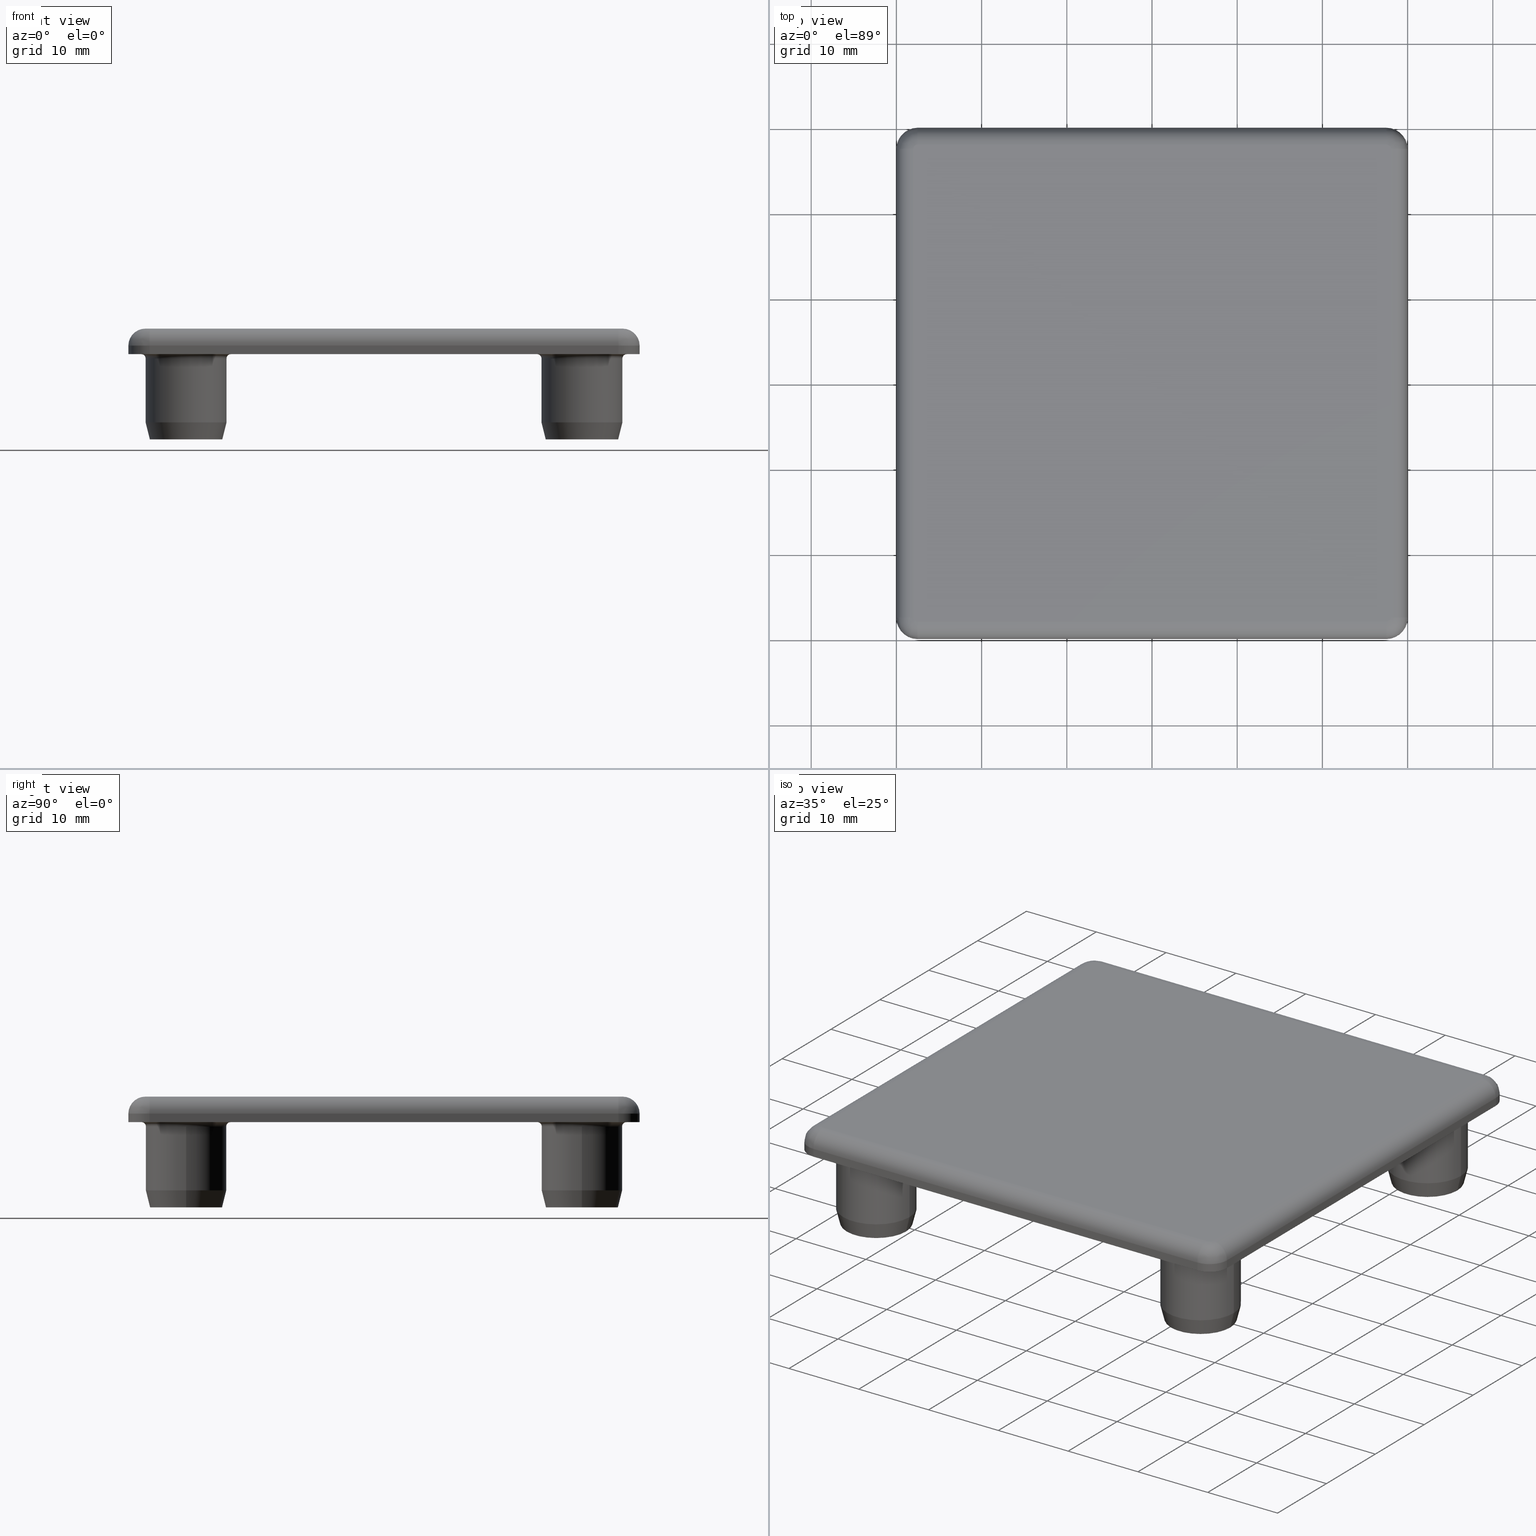
[diagram: canonical four-view strip — front | top / right | iso, engineering-drawing reading convention]
A machine part, canonical four-view strip (front | top / right | iso — engineering-drawing reading convention). The complete STEP part file that produces these views, byte-faithful:
ISO-10303-21;
HEADER;
/* Generated by software containing ST-Developer
 * from STEP Tools, Inc. (www.steptools.com) 
 */

FILE_DESCRIPTION(
/* description */ ('TAPPO 60X60 NERO PER STRUTTURALE'),
/* implementation_level */ '2;1');

FILE_NAME(
/* name */ 
'Q:\\Catalogo\\2_Accessori Dierre\\Per Download Web e catalogo cartace
o\\CATALOGO TAPPI DI CHIUSURA\\PAGINA 89\\DTPTR0000067.stp',
/* time_stamp */ '2018-11-08T10:35:47+01:00',
/* author */ ('fzagni'),
/* organization */ (''),
/* preprocessor_version */ 'ST-DEVELOPER v16.1',
/* originating_system */ 'Autodesk Inventor 2016',
/* authorisation */ '');

FILE_SCHEMA (('AUTOMOTIVE_DESIGN { 1 0 10303 214 3 1 1 }'));
ENDSEC;

DATA;
#10=MECHANICAL_DESIGN_GEOMETRIC_PRESENTATION_REPRESENTATION('',(#13),#1263);
#11=SHAPE_REPRESENTATION_RELATIONSHIP('SRR','None',#1272,#12);
#12=ADVANCED_BREP_SHAPE_REPRESENTATION('',(#14),#1262);
#13=STYLED_ITEM('',(#1281),#14);
#14=MANIFOLD_SOLID_BREP('Importato1',#679);
#15=(
BOUNDED_SURFACE()
B_SPLINE_SURFACE(2,2,((#1199,#1200,#1201),(#1202,#1203,#1204),(#1205,#1206,
#1207)),.UNSPECIFIED.,.F.,.F.,.F.)
B_SPLINE_SURFACE_WITH_KNOTS((3,3),(3,3),(-1.57079632679489,2.95433129681904E-14),
(-1.5707963267949,1.55431223447541E-15),.UNSPECIFIED.)
GEOMETRIC_REPRESENTATION_ITEM()
RATIONAL_B_SPLINE_SURFACE(((1.,0.707106781186547,1.),(0.707106781186535,
0.499999999999991,0.707106781186535),(1.,0.707106781186547,1.)))
REPRESENTATION_ITEM('')
SURFACE()
);
#16=(
BOUNDED_SURFACE()
B_SPLINE_SURFACE(2,2,((#1209,#1210,#1211),(#1212,#1213,#1214),(#1215,#1216,
#1217)),.UNSPECIFIED.,.F.,.F.,.F.)
B_SPLINE_SURFACE_WITH_KNOTS((3,3),(3,3),(-1.57079632679491,1.15225276094208E-14),
(-3.14159265358979,-1.57079632679483),.UNSPECIFIED.)
GEOMETRIC_REPRESENTATION_ITEM()
RATIONAL_B_SPLINE_SURFACE(((1.,0.707106781186522,1.),(0.707106781186542,
0.499999999999979,0.707106781186542),(1.,0.707106781186522,1.)))
REPRESENTATION_ITEM('')
SURFACE()
);
#17=(
BOUNDED_SURFACE()
B_SPLINE_SURFACE(2,2,((#1223,#1224,#1225),(#1226,#1227,#1228),(#1229,#1230,
#1231)),.UNSPECIFIED.,.F.,.F.,.F.)
B_SPLINE_SURFACE_WITH_KNOTS((3,3),(3,3),(-1.57079632679491,-7.98477870953328E-15),
(-2.75496933148325E-14,1.57079632679497),.UNSPECIFIED.)
GEOMETRIC_REPRESENTATION_ITEM()
RATIONAL_B_SPLINE_SURFACE(((1.,0.707106781186512,1.),(0.707106781186545,
0.499999999999973,0.707106781186545),(1.,0.707106781186512,1.)))
REPRESENTATION_ITEM('')
SURFACE()
);
#18=(
BOUNDED_SURFACE()
B_SPLINE_SURFACE(2,2,((#1233,#1234,#1235),(#1236,#1237,#1238),(#1239,#1240,
#1241)),.UNSPECIFIED.,.F.,.F.,.F.)
B_SPLINE_SURFACE_WITH_KNOTS((3,3),(3,3),(-1.5707963267949,3.42207922625081E-14),
(1.5707963267949,3.1415926535898),.UNSPECIFIED.)
GEOMETRIC_REPRESENTATION_ITEM()
RATIONAL_B_SPLINE_SURFACE(((1.,0.707106781186547,1.),(0.707106781186534,
0.49999999999999,0.707106781186534),(1.,0.707106781186547,1.)))
REPRESENTATION_ITEM('')
SURFACE()
);
#19=LINE('',#1135,#39);
#20=LINE('',#1139,#40);
#21=LINE('',#1143,#41);
#22=LINE('',#1146,#42);
#23=LINE('',#1149,#43);
#24=LINE('',#1152,#44);
#25=LINE('',#1155,#45);
#26=LINE('',#1156,#46);
#27=LINE('',#1160,#47);
#28=LINE('',#1163,#48);
#29=LINE('',#1164,#49);
#30=LINE('',#1168,#50);
#31=LINE('',#1171,#51);
#32=LINE('',#1172,#52);
#33=LINE('',#1176,#53);
#34=LINE('',#1178,#54);
#35=LINE('',#1184,#55);
#36=LINE('',#1188,#56);
#37=LINE('',#1192,#57);
#38=LINE('',#1195,#58);
#39=VECTOR('',#917,55.);
#40=VECTOR('',#920,55.);
#41=VECTOR('',#923,55.);
#42=VECTOR('',#926,55.);
#43=VECTOR('',#929,1.);
#44=VECTOR('',#932,1.);
#45=VECTOR('',#935,55.);
#46=VECTOR('',#936,1.);
#47=VECTOR('',#941,1.);
#48=VECTOR('',#944,55.);
#49=VECTOR('',#945,1.);
#50=VECTOR('',#950,1.);
#51=VECTOR('',#953,55.);
#52=VECTOR('',#954,1.);
#53=VECTOR('',#959,1.);
#54=VECTOR('',#962,55.);
#55=VECTOR('',#967,55.);
#56=VECTOR('',#970,55.);
#57=VECTOR('',#973,55.);
#58=VECTOR('',#976,55.);
#59=PLANE('',#741);
#60=PLANE('',#748);
#61=PLANE('',#751);
#62=PLANE('',#754);
#63=PLANE('',#757);
#64=PLANE('',#758);
#65=PLANE('',#775);
#66=PLANE('',#776);
#67=PLANE('',#777);
#68=PLANE('',#779);
#69=PLANE('',#783);
#70=PLANE('',#784);
#71=PLANE('',#785);
#72=PLANE('',#787);
#73=CYLINDRICAL_SURFACE('',#703,3.75);
#74=CYLINDRICAL_SURFACE('',#706,3.75);
#75=CYLINDRICAL_SURFACE('',#709,4.75);
#76=CYLINDRICAL_SURFACE('',#710,4.75);
#77=CYLINDRICAL_SURFACE('',#727,3.75);
#78=CYLINDRICAL_SURFACE('',#730,3.75);
#79=CYLINDRICAL_SURFACE('',#739,4.75);
#80=CYLINDRICAL_SURFACE('',#740,4.75);
#81=CYLINDRICAL_SURFACE('',#746,2.5);
#82=CYLINDRICAL_SURFACE('',#749,2.5);
#83=CYLINDRICAL_SURFACE('',#752,2.5);
#84=CYLINDRICAL_SURFACE('',#755,2.5);
#85=CYLINDRICAL_SURFACE('',#763,2.);
#86=CYLINDRICAL_SURFACE('',#768,2.);
#87=CYLINDRICAL_SURFACE('',#770,2.);
#88=CYLINDRICAL_SURFACE('',#774,2.);
#89=TOROIDAL_SURFACE('',#687,5.25,0.500000000000006);
#90=TOROIDAL_SURFACE('',#690,3.2499999672725,0.500000001549869);
#91=TOROIDAL_SURFACE('',#695,3.24999996727248,0.500000001549877);
#92=TOROIDAL_SURFACE('',#700,5.25000000000001,0.500000000000002);
#93=TOROIDAL_SURFACE('',#711,5.25,0.500000000000002);
#94=TOROIDAL_SURFACE('',#714,3.24999996727249,0.500000001549881);
#95=TOROIDAL_SURFACE('',#719,3.2499999672725,0.50000000154987);
#96=TOROIDAL_SURFACE('',#724,5.25,0.499999999999999);
#97=TOROIDAL_SURFACE('',#781,3.24999996727251,0.500000001549878);
#98=TOROIDAL_SURFACE('',#782,3.24999996727249,0.500000001549871);
#99=TOROIDAL_SURFACE('',#789,3.2499999672725,0.500000001549867);
#100=TOROIDAL_SURFACE('',#790,3.24999996727251,0.50000000154988);
#101=FACE_BOUND('',#176,.T.);
#102=FACE_BOUND('',#178,.T.);
#103=FACE_BOUND('',#180,.T.);
#104=FACE_BOUND('',#184,.T.);
#105=FACE_BOUND('',#186,.T.);
#106=FACE_BOUND('',#188,.T.);
#107=FACE_BOUND('',#190,.T.);
#108=FACE_BOUND('',#192,.T.);
#109=FACE_BOUND('',#194,.T.);
#110=FACE_BOUND('',#198,.T.);
#111=FACE_BOUND('',#200,.T.);
#112=FACE_BOUND('',#202,.T.);
#113=FACE_BOUND('',#204,.T.);
#114=FACE_BOUND('',#206,.T.);
#115=FACE_BOUND('',#208,.T.);
#116=FACE_BOUND('',#210,.T.);
#117=FACE_BOUND('',#212,.T.);
#118=FACE_BOUND('',#213,.T.);
#119=FACE_BOUND('',#214,.T.);
#120=FACE_BOUND('',#215,.T.);
#121=FACE_BOUND('',#234,.T.);
#122=FACE_BOUND('',#236,.T.);
#123=FACE_BOUND('',#242,.T.);
#124=FACE_BOUND('',#244,.T.);
#125=FACE_OUTER_BOUND('',#175,.T.);
#126=FACE_OUTER_BOUND('',#177,.T.);
#127=FACE_OUTER_BOUND('',#179,.T.);
#128=FACE_OUTER_BOUND('',#181,.T.);
#129=FACE_OUTER_BOUND('',#182,.T.);
#130=FACE_OUTER_BOUND('',#183,.T.);
#131=FACE_OUTER_BOUND('',#185,.T.);
#132=FACE_OUTER_BOUND('',#187,.T.);
#133=FACE_OUTER_BOUND('',#189,.T.);
#134=FACE_OUTER_BOUND('',#191,.T.);
#135=FACE_OUTER_BOUND('',#193,.T.);
#136=FACE_OUTER_BOUND('',#195,.T.);
#137=FACE_OUTER_BOUND('',#196,.T.);
#138=FACE_OUTER_BOUND('',#197,.T.);
#139=FACE_OUTER_BOUND('',#199,.T.);
#140=FACE_OUTER_BOUND('',#201,.T.);
#141=FACE_OUTER_BOUND('',#203,.T.);
#142=FACE_OUTER_BOUND('',#205,.T.);
#143=FACE_OUTER_BOUND('',#207,.T.);
#144=FACE_OUTER_BOUND('',#209,.T.);
#145=FACE_OUTER_BOUND('',#211,.T.);
#146=FACE_OUTER_BOUND('',#216,.T.);
#147=FACE_OUTER_BOUND('',#217,.T.);
#148=FACE_OUTER_BOUND('',#218,.T.);
#149=FACE_OUTER_BOUND('',#219,.T.);
#150=FACE_OUTER_BOUND('',#220,.T.);
#151=FACE_OUTER_BOUND('',#221,.T.);
#152=FACE_OUTER_BOUND('',#222,.T.);
#153=FACE_OUTER_BOUND('',#223,.T.);
#154=FACE_OUTER_BOUND('',#224,.T.);
#155=FACE_OUTER_BOUND('',#225,.T.);
#156=FACE_OUTER_BOUND('',#226,.T.);
#157=FACE_OUTER_BOUND('',#227,.T.);
#158=FACE_OUTER_BOUND('',#228,.T.);
#159=FACE_OUTER_BOUND('',#229,.T.);
#160=FACE_OUTER_BOUND('',#230,.T.);
#161=FACE_OUTER_BOUND('',#231,.T.);
#162=FACE_OUTER_BOUND('',#232,.T.);
#163=FACE_OUTER_BOUND('',#233,.T.);
#164=FACE_OUTER_BOUND('',#235,.T.);
#165=FACE_OUTER_BOUND('',#237,.T.);
#166=FACE_OUTER_BOUND('',#238,.T.);
#167=FACE_OUTER_BOUND('',#239,.T.);
#168=FACE_OUTER_BOUND('',#240,.T.);
#169=FACE_OUTER_BOUND('',#241,.T.);
#170=FACE_OUTER_BOUND('',#243,.T.);
#171=FACE_OUTER_BOUND('',#245,.T.);
#172=FACE_OUTER_BOUND('',#246,.T.);
#173=FACE_OUTER_BOUND('',#247,.T.);
#174=FACE_OUTER_BOUND('',#248,.T.);
#175=EDGE_LOOP('',(#457));
#176=EDGE_LOOP('',(#458));
#177=EDGE_LOOP('',(#459));
#178=EDGE_LOOP('',(#460));
#179=EDGE_LOOP('',(#461));
#180=EDGE_LOOP('',(#462));
#181=EDGE_LOOP('',(#463,#464,#465,#466));
#182=EDGE_LOOP('',(#467,#468,#469,#470));
#183=EDGE_LOOP('',(#471));
#184=EDGE_LOOP('',(#472));
#185=EDGE_LOOP('',(#473));
#186=EDGE_LOOP('',(#474,#475));
#187=EDGE_LOOP('',(#476));
#188=EDGE_LOOP('',(#477,#478));
#189=EDGE_LOOP('',(#479));
#190=EDGE_LOOP('',(#480));
#191=EDGE_LOOP('',(#481));
#192=EDGE_LOOP('',(#482));
#193=EDGE_LOOP('',(#483));
#194=EDGE_LOOP('',(#484));
#195=EDGE_LOOP('',(#485,#486,#487,#488));
#196=EDGE_LOOP('',(#489,#490,#491,#492));
#197=EDGE_LOOP('',(#493));
#198=EDGE_LOOP('',(#494));
#199=EDGE_LOOP('',(#495));
#200=EDGE_LOOP('',(#496,#497));
#201=EDGE_LOOP('',(#498));
#202=EDGE_LOOP('',(#499,#500));
#203=EDGE_LOOP('',(#501));
#204=EDGE_LOOP('',(#502));
#205=EDGE_LOOP('',(#503));
#206=EDGE_LOOP('',(#504));
#207=EDGE_LOOP('',(#505));
#208=EDGE_LOOP('',(#506));
#209=EDGE_LOOP('',(#507));
#210=EDGE_LOOP('',(#508));
#211=EDGE_LOOP('',(#509,#510,#511,#512,#513,#514,#515,#516));
#212=EDGE_LOOP('',(#517));
#213=EDGE_LOOP('',(#518));
#214=EDGE_LOOP('',(#519));
#215=EDGE_LOOP('',(#520));
#216=EDGE_LOOP('',(#521,#522,#523,#524));
#217=EDGE_LOOP('',(#525,#526,#527,#528));
#218=EDGE_LOOP('',(#529,#530,#531,#532));
#219=EDGE_LOOP('',(#533,#534,#535,#536));
#220=EDGE_LOOP('',(#537,#538,#539,#540));
#221=EDGE_LOOP('',(#541,#542,#543,#544));
#222=EDGE_LOOP('',(#545,#546,#547,#548));
#223=EDGE_LOOP('',(#549,#550,#551,#552));
#224=EDGE_LOOP('',(#553,#554,#555,#556,#557,#558,#559,#560));
#225=EDGE_LOOP('',(#561,#562,#563,#564));
#226=EDGE_LOOP('',(#565,#566,#567,#568));
#227=EDGE_LOOP('',(#569,#570,#571,#572));
#228=EDGE_LOOP('',(#573,#574,#575,#576));
#229=EDGE_LOOP('',(#577,#578,#579,#580));
#230=EDGE_LOOP('',(#581,#582,#583,#584));
#231=EDGE_LOOP('',(#585,#586,#587,#588));
#232=EDGE_LOOP('',(#589,#590,#591,#592));
#233=EDGE_LOOP('',(#593));
#234=EDGE_LOOP('',(#594));
#235=EDGE_LOOP('',(#595));
#236=EDGE_LOOP('',(#596));
#237=EDGE_LOOP('',(#597,#598));
#238=EDGE_LOOP('',(#599,#600));
#239=EDGE_LOOP('',(#601,#602,#603,#604));
#240=EDGE_LOOP('',(#605,#606,#607,#608));
#241=EDGE_LOOP('',(#609));
#242=EDGE_LOOP('',(#610));
#243=EDGE_LOOP('',(#611));
#244=EDGE_LOOP('',(#612));
#245=EDGE_LOOP('',(#613,#614));
#246=EDGE_LOOP('',(#615,#616));
#247=EDGE_LOOP('',(#617,#618,#619,#620));
#248=EDGE_LOOP('',(#621,#622,#623,#624));
#249=CIRCLE('',#682,4.25);
#250=CIRCLE('',#683,4.75);
#251=CIRCLE('',#685,4.25);
#252=CIRCLE('',#686,4.75);
#253=CIRCLE('',#688,4.75);
#254=CIRCLE('',#689,5.25);
#255=CIRCLE('',#691,3.75);
#256=CIRCLE('',#692,0.500000000000001);
#257=CIRCLE('',#693,3.25);
#258=CIRCLE('',#694,0.5);
#259=CIRCLE('',#696,3.75);
#260=CIRCLE('',#697,0.500000000000001);
#261=CIRCLE('',#698,3.25);
#262=CIRCLE('',#699,0.5);
#263=CIRCLE('',#701,4.75);
#264=CIRCLE('',#702,5.25);
#265=CIRCLE('',#704,3.75);
#266=CIRCLE('',#705,3.75);
#267=CIRCLE('',#707,3.75);
#268=CIRCLE('',#708,3.75);
#269=CIRCLE('',#712,4.75);
#270=CIRCLE('',#713,5.25);
#271=CIRCLE('',#715,3.75);
#272=CIRCLE('',#716,0.500000000000001);
#273=CIRCLE('',#717,3.25);
#274=CIRCLE('',#718,0.5);
#275=CIRCLE('',#720,3.75);
#276=CIRCLE('',#721,0.500000000000001);
#277=CIRCLE('',#722,3.25);
#278=CIRCLE('',#723,0.5);
#279=CIRCLE('',#725,4.75);
#280=CIRCLE('',#726,5.25);
#281=CIRCLE('',#728,3.75);
#282=CIRCLE('',#729,3.75);
#283=CIRCLE('',#731,3.75);
#284=CIRCLE('',#732,3.75);
#285=CIRCLE('',#734,4.25);
#286=CIRCLE('',#735,4.75);
#287=CIRCLE('',#737,4.25);
#288=CIRCLE('',#738,4.75);
#289=CIRCLE('',#742,2.5);
#290=CIRCLE('',#743,2.5);
#291=CIRCLE('',#744,2.5);
#292=CIRCLE('',#745,2.5);
#293=CIRCLE('',#747,2.5);
#294=CIRCLE('',#750,2.5);
#295=CIRCLE('',#753,2.5);
#296=CIRCLE('',#756,2.5);
#297=CIRCLE('',#759,0.500000000000001);
#298=CIRCLE('',#760,0.500000000000001);
#299=CIRCLE('',#761,0.500000000000001);
#300=CIRCLE('',#762,0.500000000000001);
#301=CIRCLE('',#764,2.);
#302=CIRCLE('',#765,2.);
#303=CIRCLE('',#766,2.);
#304=CIRCLE('',#767,2.);
#305=CIRCLE('',#769,2.);
#306=CIRCLE('',#771,2.);
#307=CIRCLE('',#772,2.);
#308=CIRCLE('',#773,2.);
#309=CIRCLE('',#778,3.25);
#310=CIRCLE('',#780,3.25);
#311=CIRCLE('',#786,3.25);
#312=CIRCLE('',#788,3.25);
#313=VERTEX_POINT('',#1035);
#314=VERTEX_POINT('',#1037);
#315=VERTEX_POINT('',#1040);
#316=VERTEX_POINT('',#1042);
#317=VERTEX_POINT('',#1045);
#318=VERTEX_POINT('',#1047);
#319=VERTEX_POINT('',#1050);
#320=VERTEX_POINT('',#1051);
#321=VERTEX_POINT('',#1053);
#322=VERTEX_POINT('',#1055);
#323=VERTEX_POINT('',#1059);
#324=VERTEX_POINT('',#1060);
#325=VERTEX_POINT('',#1062);
#326=VERTEX_POINT('',#1064);
#327=VERTEX_POINT('',#1068);
#328=VERTEX_POINT('',#1070);
#329=VERTEX_POINT('',#1073);
#330=VERTEX_POINT('',#1077);
#331=VERTEX_POINT('',#1083);
#332=VERTEX_POINT('',#1085);
#333=VERTEX_POINT('',#1088);
#334=VERTEX_POINT('',#1089);
#335=VERTEX_POINT('',#1091);
#336=VERTEX_POINT('',#1093);
#337=VERTEX_POINT('',#1097);
#338=VERTEX_POINT('',#1098);
#339=VERTEX_POINT('',#1100);
#340=VERTEX_POINT('',#1102);
#341=VERTEX_POINT('',#1106);
#342=VERTEX_POINT('',#1108);
#343=VERTEX_POINT('',#1111);
#344=VERTEX_POINT('',#1115);
#345=VERTEX_POINT('',#1119);
#346=VERTEX_POINT('',#1121);
#347=VERTEX_POINT('',#1124);
#348=VERTEX_POINT('',#1126);
#349=VERTEX_POINT('',#1131);
#350=VERTEX_POINT('',#1132);
#351=VERTEX_POINT('',#1134);
#352=VERTEX_POINT('',#1136);
#353=VERTEX_POINT('',#1138);
#354=VERTEX_POINT('',#1140);
#355=VERTEX_POINT('',#1142);
#356=VERTEX_POINT('',#1144);
#357=VERTEX_POINT('',#1148);
#358=VERTEX_POINT('',#1150);
#359=VERTEX_POINT('',#1154);
#360=VERTEX_POINT('',#1158);
#361=VERTEX_POINT('',#1162);
#362=VERTEX_POINT('',#1166);
#363=VERTEX_POINT('',#1170);
#364=VERTEX_POINT('',#1174);
#365=VERTEX_POINT('',#1180);
#366=VERTEX_POINT('',#1181);
#367=VERTEX_POINT('',#1183);
#368=VERTEX_POINT('',#1185);
#369=VERTEX_POINT('',#1187);
#370=VERTEX_POINT('',#1189);
#371=VERTEX_POINT('',#1191);
#372=VERTEX_POINT('',#1193);
#373=EDGE_CURVE('',#313,#313,#249,.T.);
#374=EDGE_CURVE('',#314,#314,#250,.T.);
#375=EDGE_CURVE('',#315,#315,#251,.T.);
#376=EDGE_CURVE('',#316,#316,#252,.T.);
#377=EDGE_CURVE('',#317,#317,#253,.T.);
#378=EDGE_CURVE('',#318,#318,#254,.T.);
#379=EDGE_CURVE('',#319,#320,#255,.T.);
#380=EDGE_CURVE('',#319,#321,#256,.T.);
#381=EDGE_CURVE('',#322,#321,#257,.T.);
#382=EDGE_CURVE('',#320,#322,#258,.T.);
#383=EDGE_CURVE('',#323,#324,#259,.T.);
#384=EDGE_CURVE('',#323,#325,#260,.T.);
#385=EDGE_CURVE('',#326,#325,#261,.T.);
#386=EDGE_CURVE('',#324,#326,#262,.T.);
#387=EDGE_CURVE('',#327,#327,#263,.T.);
#388=EDGE_CURVE('',#328,#328,#264,.T.);
#389=EDGE_CURVE('',#329,#329,#265,.T.);
#390=EDGE_CURVE('',#324,#323,#266,.T.);
#391=EDGE_CURVE('',#330,#330,#267,.T.);
#392=EDGE_CURVE('',#320,#319,#268,.T.);
#393=EDGE_CURVE('',#331,#331,#269,.T.);
#394=EDGE_CURVE('',#332,#332,#270,.T.);
#395=EDGE_CURVE('',#333,#334,#271,.T.);
#396=EDGE_CURVE('',#333,#335,#272,.T.);
#397=EDGE_CURVE('',#336,#335,#273,.T.);
#398=EDGE_CURVE('',#334,#336,#274,.T.);
#399=EDGE_CURVE('',#337,#338,#275,.T.);
#400=EDGE_CURVE('',#337,#339,#276,.T.);
#401=EDGE_CURVE('',#340,#339,#277,.T.);
#402=EDGE_CURVE('',#338,#340,#278,.T.);
#403=EDGE_CURVE('',#341,#341,#279,.T.);
#404=EDGE_CURVE('',#342,#342,#280,.T.);
#405=EDGE_CURVE('',#343,#343,#281,.T.);
#406=EDGE_CURVE('',#338,#337,#282,.T.);
#407=EDGE_CURVE('',#344,#344,#283,.T.);
#408=EDGE_CURVE('',#334,#333,#284,.T.);
#409=EDGE_CURVE('',#345,#345,#285,.T.);
#410=EDGE_CURVE('',#346,#346,#286,.T.);
#411=EDGE_CURVE('',#347,#347,#287,.T.);
#412=EDGE_CURVE('',#348,#348,#288,.T.);
#413=EDGE_CURVE('',#349,#350,#289,.T.);
#414=EDGE_CURVE('',#350,#351,#19,.T.);
#415=EDGE_CURVE('',#351,#352,#290,.T.);
#416=EDGE_CURVE('',#352,#353,#20,.T.);
#417=EDGE_CURVE('',#353,#354,#291,.T.);
#418=EDGE_CURVE('',#354,#355,#21,.T.);
#419=EDGE_CURVE('',#355,#356,#292,.T.);
#420=EDGE_CURVE('',#356,#349,#22,.T.);
#421=EDGE_CURVE('',#349,#357,#23,.T.);
#422=EDGE_CURVE('',#357,#358,#293,.T.);
#423=EDGE_CURVE('',#350,#358,#24,.T.);
#424=EDGE_CURVE('',#358,#359,#25,.T.);
#425=EDGE_CURVE('',#351,#359,#26,.T.);
#426=EDGE_CURVE('',#359,#360,#294,.T.);
#427=EDGE_CURVE('',#352,#360,#27,.T.);
#428=EDGE_CURVE('',#360,#361,#28,.T.);
#429=EDGE_CURVE('',#353,#361,#29,.T.);
#430=EDGE_CURVE('',#361,#362,#295,.T.);
#431=EDGE_CURVE('',#354,#362,#30,.T.);
#432=EDGE_CURVE('',#362,#363,#31,.T.);
#433=EDGE_CURVE('',#355,#363,#32,.T.);
#434=EDGE_CURVE('',#363,#364,#296,.T.);
#435=EDGE_CURVE('',#356,#364,#33,.T.);
#436=EDGE_CURVE('',#364,#357,#34,.T.);
#437=EDGE_CURVE('',#365,#366,#297,.T.);
#438=EDGE_CURVE('',#366,#367,#35,.T.);
#439=EDGE_CURVE('',#367,#368,#298,.T.);
#440=EDGE_CURVE('',#368,#369,#36,.T.);
#441=EDGE_CURVE('',#369,#370,#299,.T.);
#442=EDGE_CURVE('',#370,#371,#37,.T.);
#443=EDGE_CURVE('',#371,#372,#300,.T.);
#444=EDGE_CURVE('',#372,#365,#38,.T.);
#445=EDGE_CURVE('',#371,#360,#301,.T.);
#446=EDGE_CURVE('',#361,#370,#302,.T.);
#447=EDGE_CURVE('',#362,#369,#303,.T.);
#448=EDGE_CURVE('',#372,#359,#304,.T.);
#449=EDGE_CURVE('',#363,#368,#305,.T.);
#450=EDGE_CURVE('',#365,#358,#306,.T.);
#451=EDGE_CURVE('',#364,#367,#307,.T.);
#452=EDGE_CURVE('',#366,#357,#308,.T.);
#453=EDGE_CURVE('',#335,#336,#309,.T.);
#454=EDGE_CURVE('',#339,#340,#310,.T.);
#455=EDGE_CURVE('',#321,#322,#311,.T.);
#456=EDGE_CURVE('',#325,#326,#312,.T.);
#457=ORIENTED_EDGE('',*,*,#373,.F.);
#458=ORIENTED_EDGE('',*,*,#374,.F.);
#459=ORIENTED_EDGE('',*,*,#375,.F.);
#460=ORIENTED_EDGE('',*,*,#376,.F.);
#461=ORIENTED_EDGE('',*,*,#377,.F.);
#462=ORIENTED_EDGE('',*,*,#378,.F.);
#463=ORIENTED_EDGE('',*,*,#379,.F.);
#464=ORIENTED_EDGE('',*,*,#380,.T.);
#465=ORIENTED_EDGE('',*,*,#381,.F.);
#466=ORIENTED_EDGE('',*,*,#382,.F.);
#467=ORIENTED_EDGE('',*,*,#383,.F.);
#468=ORIENTED_EDGE('',*,*,#384,.T.);
#469=ORIENTED_EDGE('',*,*,#385,.F.);
#470=ORIENTED_EDGE('',*,*,#386,.F.);
#471=ORIENTED_EDGE('',*,*,#387,.F.);
#472=ORIENTED_EDGE('',*,*,#388,.F.);
#473=ORIENTED_EDGE('',*,*,#389,.F.);
#474=ORIENTED_EDGE('',*,*,#383,.T.);
#475=ORIENTED_EDGE('',*,*,#390,.T.);
#476=ORIENTED_EDGE('',*,*,#391,.F.);
#477=ORIENTED_EDGE('',*,*,#379,.T.);
#478=ORIENTED_EDGE('',*,*,#392,.T.);
#479=ORIENTED_EDGE('',*,*,#376,.T.);
#480=ORIENTED_EDGE('',*,*,#377,.T.);
#481=ORIENTED_EDGE('',*,*,#374,.T.);
#482=ORIENTED_EDGE('',*,*,#387,.T.);
#483=ORIENTED_EDGE('',*,*,#393,.F.);
#484=ORIENTED_EDGE('',*,*,#394,.F.);
#485=ORIENTED_EDGE('',*,*,#395,.F.);
#486=ORIENTED_EDGE('',*,*,#396,.T.);
#487=ORIENTED_EDGE('',*,*,#397,.F.);
#488=ORIENTED_EDGE('',*,*,#398,.F.);
#489=ORIENTED_EDGE('',*,*,#399,.F.);
#490=ORIENTED_EDGE('',*,*,#400,.T.);
#491=ORIENTED_EDGE('',*,*,#401,.F.);
#492=ORIENTED_EDGE('',*,*,#402,.F.);
#493=ORIENTED_EDGE('',*,*,#403,.F.);
#494=ORIENTED_EDGE('',*,*,#404,.F.);
#495=ORIENTED_EDGE('',*,*,#405,.F.);
#496=ORIENTED_EDGE('',*,*,#399,.T.);
#497=ORIENTED_EDGE('',*,*,#406,.T.);
#498=ORIENTED_EDGE('',*,*,#407,.F.);
#499=ORIENTED_EDGE('',*,*,#395,.T.);
#500=ORIENTED_EDGE('',*,*,#408,.T.);
#501=ORIENTED_EDGE('',*,*,#409,.F.);
#502=ORIENTED_EDGE('',*,*,#410,.F.);
#503=ORIENTED_EDGE('',*,*,#411,.F.);
#504=ORIENTED_EDGE('',*,*,#412,.F.);
#505=ORIENTED_EDGE('',*,*,#410,.T.);
#506=ORIENTED_EDGE('',*,*,#393,.T.);
#507=ORIENTED_EDGE('',*,*,#412,.T.);
#508=ORIENTED_EDGE('',*,*,#403,.T.);
#509=ORIENTED_EDGE('',*,*,#413,.T.);
#510=ORIENTED_EDGE('',*,*,#414,.T.);
#511=ORIENTED_EDGE('',*,*,#415,.T.);
#512=ORIENTED_EDGE('',*,*,#416,.T.);
#513=ORIENTED_EDGE('',*,*,#417,.T.);
#514=ORIENTED_EDGE('',*,*,#418,.T.);
#515=ORIENTED_EDGE('',*,*,#419,.T.);
#516=ORIENTED_EDGE('',*,*,#420,.T.);
#517=ORIENTED_EDGE('',*,*,#388,.T.);
#518=ORIENTED_EDGE('',*,*,#378,.T.);
#519=ORIENTED_EDGE('',*,*,#404,.T.);
#520=ORIENTED_EDGE('',*,*,#394,.T.);
#521=ORIENTED_EDGE('',*,*,#421,.T.);
#522=ORIENTED_EDGE('',*,*,#422,.T.);
#523=ORIENTED_EDGE('',*,*,#423,.F.);
#524=ORIENTED_EDGE('',*,*,#413,.F.);
#525=ORIENTED_EDGE('',*,*,#423,.T.);
#526=ORIENTED_EDGE('',*,*,#424,.T.);
#527=ORIENTED_EDGE('',*,*,#425,.F.);
#528=ORIENTED_EDGE('',*,*,#414,.F.);
#529=ORIENTED_EDGE('',*,*,#425,.T.);
#530=ORIENTED_EDGE('',*,*,#426,.T.);
#531=ORIENTED_EDGE('',*,*,#427,.F.);
#532=ORIENTED_EDGE('',*,*,#415,.F.);
#533=ORIENTED_EDGE('',*,*,#427,.T.);
#534=ORIENTED_EDGE('',*,*,#428,.T.);
#535=ORIENTED_EDGE('',*,*,#429,.F.);
#536=ORIENTED_EDGE('',*,*,#416,.F.);
#537=ORIENTED_EDGE('',*,*,#429,.T.);
#538=ORIENTED_EDGE('',*,*,#430,.T.);
#539=ORIENTED_EDGE('',*,*,#431,.F.);
#540=ORIENTED_EDGE('',*,*,#417,.F.);
#541=ORIENTED_EDGE('',*,*,#431,.T.);
#542=ORIENTED_EDGE('',*,*,#432,.T.);
#543=ORIENTED_EDGE('',*,*,#433,.F.);
#544=ORIENTED_EDGE('',*,*,#418,.F.);
#545=ORIENTED_EDGE('',*,*,#433,.T.);
#546=ORIENTED_EDGE('',*,*,#434,.T.);
#547=ORIENTED_EDGE('',*,*,#435,.F.);
#548=ORIENTED_EDGE('',*,*,#419,.F.);
#549=ORIENTED_EDGE('',*,*,#435,.T.);
#550=ORIENTED_EDGE('',*,*,#436,.T.);
#551=ORIENTED_EDGE('',*,*,#421,.F.);
#552=ORIENTED_EDGE('',*,*,#420,.F.);
#553=ORIENTED_EDGE('',*,*,#437,.T.);
#554=ORIENTED_EDGE('',*,*,#438,.T.);
#555=ORIENTED_EDGE('',*,*,#439,.T.);
#556=ORIENTED_EDGE('',*,*,#440,.T.);
#557=ORIENTED_EDGE('',*,*,#441,.T.);
#558=ORIENTED_EDGE('',*,*,#442,.T.);
#559=ORIENTED_EDGE('',*,*,#443,.T.);
#560=ORIENTED_EDGE('',*,*,#444,.T.);
#561=ORIENTED_EDGE('',*,*,#445,.F.);
#562=ORIENTED_EDGE('',*,*,#442,.F.);
#563=ORIENTED_EDGE('',*,*,#446,.F.);
#564=ORIENTED_EDGE('',*,*,#428,.F.);
#565=ORIENTED_EDGE('',*,*,#446,.T.);
#566=ORIENTED_EDGE('',*,*,#441,.F.);
#567=ORIENTED_EDGE('',*,*,#447,.F.);
#568=ORIENTED_EDGE('',*,*,#430,.F.);
#569=ORIENTED_EDGE('',*,*,#445,.T.);
#570=ORIENTED_EDGE('',*,*,#426,.F.);
#571=ORIENTED_EDGE('',*,*,#448,.F.);
#572=ORIENTED_EDGE('',*,*,#443,.F.);
#573=ORIENTED_EDGE('',*,*,#447,.T.);
#574=ORIENTED_EDGE('',*,*,#440,.F.);
#575=ORIENTED_EDGE('',*,*,#449,.F.);
#576=ORIENTED_EDGE('',*,*,#432,.F.);
#577=ORIENTED_EDGE('',*,*,#448,.T.);
#578=ORIENTED_EDGE('',*,*,#424,.F.);
#579=ORIENTED_EDGE('',*,*,#450,.F.);
#580=ORIENTED_EDGE('',*,*,#444,.F.);
#581=ORIENTED_EDGE('',*,*,#449,.T.);
#582=ORIENTED_EDGE('',*,*,#439,.F.);
#583=ORIENTED_EDGE('',*,*,#451,.F.);
#584=ORIENTED_EDGE('',*,*,#434,.F.);
#585=ORIENTED_EDGE('',*,*,#450,.T.);
#586=ORIENTED_EDGE('',*,*,#422,.F.);
#587=ORIENTED_EDGE('',*,*,#452,.F.);
#588=ORIENTED_EDGE('',*,*,#437,.F.);
#589=ORIENTED_EDGE('',*,*,#451,.T.);
#590=ORIENTED_EDGE('',*,*,#438,.F.);
#591=ORIENTED_EDGE('',*,*,#452,.T.);
#592=ORIENTED_EDGE('',*,*,#436,.F.);
#593=ORIENTED_EDGE('',*,*,#411,.T.);
#594=ORIENTED_EDGE('',*,*,#407,.T.);
#595=ORIENTED_EDGE('',*,*,#409,.T.);
#596=ORIENTED_EDGE('',*,*,#405,.T.);
#597=ORIENTED_EDGE('',*,*,#397,.T.);
#598=ORIENTED_EDGE('',*,*,#453,.T.);
#599=ORIENTED_EDGE('',*,*,#401,.T.);
#600=ORIENTED_EDGE('',*,*,#454,.T.);
#601=ORIENTED_EDGE('',*,*,#400,.F.);
#602=ORIENTED_EDGE('',*,*,#406,.F.);
#603=ORIENTED_EDGE('',*,*,#402,.T.);
#604=ORIENTED_EDGE('',*,*,#454,.F.);
#605=ORIENTED_EDGE('',*,*,#396,.F.);
#606=ORIENTED_EDGE('',*,*,#408,.F.);
#607=ORIENTED_EDGE('',*,*,#398,.T.);
#608=ORIENTED_EDGE('',*,*,#453,.F.);
#609=ORIENTED_EDGE('',*,*,#373,.T.);
#610=ORIENTED_EDGE('',*,*,#391,.T.);
#611=ORIENTED_EDGE('',*,*,#375,.T.);
#612=ORIENTED_EDGE('',*,*,#389,.T.);
#613=ORIENTED_EDGE('',*,*,#381,.T.);
#614=ORIENTED_EDGE('',*,*,#455,.T.);
#615=ORIENTED_EDGE('',*,*,#385,.T.);
#616=ORIENTED_EDGE('',*,*,#456,.T.);
#617=ORIENTED_EDGE('',*,*,#384,.F.);
#618=ORIENTED_EDGE('',*,*,#390,.F.);
#619=ORIENTED_EDGE('',*,*,#386,.T.);
#620=ORIENTED_EDGE('',*,*,#456,.F.);
#621=ORIENTED_EDGE('',*,*,#380,.F.);
#622=ORIENTED_EDGE('',*,*,#392,.F.);
#623=ORIENTED_EDGE('',*,*,#382,.T.);
#624=ORIENTED_EDGE('',*,*,#455,.F.);
#625=CONICAL_SURFACE('',#681,0.498749999999998,14.0362434679265);
#626=CONICAL_SURFACE('',#684,0.498749999999993,14.0362434679265);
#627=CONICAL_SURFACE('',#733,0.498749999999998,14.0362434679265);
#628=CONICAL_SURFACE('',#736,0.498750000000001,14.0362434679265);
#629=ADVANCED_FACE('',(#125,#101),#625,.T.);
#630=ADVANCED_FACE('',(#126,#102),#626,.T.);
#631=ADVANCED_FACE('',(#127,#103),#89,.F.);
#632=ADVANCED_FACE('',(#128),#90,.F.);
#633=ADVANCED_FACE('',(#129),#91,.F.);
#634=ADVANCED_FACE('',(#130,#104),#92,.F.);
#635=ADVANCED_FACE('',(#131,#105),#73,.F.);
#636=ADVANCED_FACE('',(#132,#106),#74,.F.);
#637=ADVANCED_FACE('',(#133,#107),#75,.T.);
#638=ADVANCED_FACE('',(#134,#108),#76,.T.);
#639=ADVANCED_FACE('',(#135,#109),#93,.F.);
#640=ADVANCED_FACE('',(#136),#94,.F.);
#641=ADVANCED_FACE('',(#137),#95,.F.);
#642=ADVANCED_FACE('',(#138,#110),#96,.F.);
#643=ADVANCED_FACE('',(#139,#111),#77,.F.);
#644=ADVANCED_FACE('',(#140,#112),#78,.F.);
#645=ADVANCED_FACE('',(#141,#113),#627,.T.);
#646=ADVANCED_FACE('',(#142,#114),#628,.T.);
#647=ADVANCED_FACE('',(#143,#115),#79,.T.);
#648=ADVANCED_FACE('',(#144,#116),#80,.T.);
#649=ADVANCED_FACE('',(#145,#117,#118,#119,#120),#59,.T.);
#650=ADVANCED_FACE('',(#146),#81,.T.);
#651=ADVANCED_FACE('',(#147),#60,.F.);
#652=ADVANCED_FACE('',(#148),#82,.T.);
#653=ADVANCED_FACE('',(#149),#61,.F.);
#654=ADVANCED_FACE('',(#150),#83,.T.);
#655=ADVANCED_FACE('',(#151),#62,.F.);
#656=ADVANCED_FACE('',(#152),#84,.T.);
#657=ADVANCED_FACE('',(#153),#63,.F.);
#658=ADVANCED_FACE('',(#154),#64,.F.);
#659=ADVANCED_FACE('',(#155),#85,.T.);
#660=ADVANCED_FACE('',(#156),#15,.F.);
#661=ADVANCED_FACE('',(#157),#16,.F.);
#662=ADVANCED_FACE('',(#158),#86,.T.);
#663=ADVANCED_FACE('',(#159),#87,.T.);
#664=ADVANCED_FACE('',(#160),#17,.F.);
#665=ADVANCED_FACE('',(#161),#18,.F.);
#666=ADVANCED_FACE('',(#162),#88,.T.);
#667=ADVANCED_FACE('',(#163,#121),#65,.F.);
#668=ADVANCED_FACE('',(#164,#122),#66,.T.);
#669=ADVANCED_FACE('',(#165),#67,.F.);
#670=ADVANCED_FACE('',(#166),#68,.F.);
#671=ADVANCED_FACE('',(#167),#97,.F.);
#672=ADVANCED_FACE('',(#168),#98,.F.);
#673=ADVANCED_FACE('',(#169,#123),#69,.F.);
#674=ADVANCED_FACE('',(#170,#124),#70,.T.);
#675=ADVANCED_FACE('',(#171),#71,.F.);
#676=ADVANCED_FACE('',(#172),#72,.F.);
#677=ADVANCED_FACE('',(#173),#99,.F.);
#678=ADVANCED_FACE('',(#174),#100,.F.);
#679=CLOSED_SHELL('',(#629,#630,#631,#632,#633,#634,#635,#636,#637,#638,
#639,#640,#641,#642,#643,#644,#645,#646,#647,#648,#649,#650,#651,#652,#653,
#654,#655,#656,#657,#658,#659,#660,#661,#662,#663,#664,#665,#666,#667,#668,
#669,#670,#671,#672,#673,#674,#675,#676,#677,#678));
#680=AXIS2_PLACEMENT_3D('placement',#1033,#791,#792);
#681=AXIS2_PLACEMENT_3D('',#1034,#793,#794);
#682=AXIS2_PLACEMENT_3D('',#1036,#795,#796);
#683=AXIS2_PLACEMENT_3D('',#1038,#797,#798);
#684=AXIS2_PLACEMENT_3D('',#1039,#799,#800);
#685=AXIS2_PLACEMENT_3D('',#1041,#801,#802);
#686=AXIS2_PLACEMENT_3D('',#1043,#803,#804);
#687=AXIS2_PLACEMENT_3D('',#1044,#805,#806);
#688=AXIS2_PLACEMENT_3D('',#1046,#807,#808);
#689=AXIS2_PLACEMENT_3D('',#1048,#809,#810);
#690=AXIS2_PLACEMENT_3D('',#1049,#811,#812);
#691=AXIS2_PLACEMENT_3D('',#1052,#813,#814);
#692=AXIS2_PLACEMENT_3D('',#1054,#815,#816);
#693=AXIS2_PLACEMENT_3D('',#1056,#817,#818);
#694=AXIS2_PLACEMENT_3D('',#1057,#819,#820);
#695=AXIS2_PLACEMENT_3D('',#1058,#821,#822);
#696=AXIS2_PLACEMENT_3D('',#1061,#823,#824);
#697=AXIS2_PLACEMENT_3D('',#1063,#825,#826);
#698=AXIS2_PLACEMENT_3D('',#1065,#827,#828);
#699=AXIS2_PLACEMENT_3D('',#1066,#829,#830);
#700=AXIS2_PLACEMENT_3D('',#1067,#831,#832);
#701=AXIS2_PLACEMENT_3D('',#1069,#833,#834);
#702=AXIS2_PLACEMENT_3D('',#1071,#835,#836);
#703=AXIS2_PLACEMENT_3D('',#1072,#837,#838);
#704=AXIS2_PLACEMENT_3D('',#1074,#839,#840);
#705=AXIS2_PLACEMENT_3D('',#1075,#841,#842);
#706=AXIS2_PLACEMENT_3D('',#1076,#843,#844);
#707=AXIS2_PLACEMENT_3D('',#1078,#845,#846);
#708=AXIS2_PLACEMENT_3D('',#1079,#847,#848);
#709=AXIS2_PLACEMENT_3D('',#1080,#849,#850);
#710=AXIS2_PLACEMENT_3D('',#1081,#851,#852);
#711=AXIS2_PLACEMENT_3D('',#1082,#853,#854);
#712=AXIS2_PLACEMENT_3D('',#1084,#855,#856);
#713=AXIS2_PLACEMENT_3D('',#1086,#857,#858);
#714=AXIS2_PLACEMENT_3D('',#1087,#859,#860);
#715=AXIS2_PLACEMENT_3D('',#1090,#861,#862);
#716=AXIS2_PLACEMENT_3D('',#1092,#863,#864);
#717=AXIS2_PLACEMENT_3D('',#1094,#865,#866);
#718=AXIS2_PLACEMENT_3D('',#1095,#867,#868);
#719=AXIS2_PLACEMENT_3D('',#1096,#869,#870);
#720=AXIS2_PLACEMENT_3D('',#1099,#871,#872);
#721=AXIS2_PLACEMENT_3D('',#1101,#873,#874);
#722=AXIS2_PLACEMENT_3D('',#1103,#875,#876);
#723=AXIS2_PLACEMENT_3D('',#1104,#877,#878);
#724=AXIS2_PLACEMENT_3D('',#1105,#879,#880);
#725=AXIS2_PLACEMENT_3D('',#1107,#881,#882);
#726=AXIS2_PLACEMENT_3D('',#1109,#883,#884);
#727=AXIS2_PLACEMENT_3D('',#1110,#885,#886);
#728=AXIS2_PLACEMENT_3D('',#1112,#887,#888);
#729=AXIS2_PLACEMENT_3D('',#1113,#889,#890);
#730=AXIS2_PLACEMENT_3D('',#1114,#891,#892);
#731=AXIS2_PLACEMENT_3D('',#1116,#893,#894);
#732=AXIS2_PLACEMENT_3D('',#1117,#895,#896);
#733=AXIS2_PLACEMENT_3D('',#1118,#897,#898);
#734=AXIS2_PLACEMENT_3D('',#1120,#899,#900);
#735=AXIS2_PLACEMENT_3D('',#1122,#901,#902);
#736=AXIS2_PLACEMENT_3D('',#1123,#903,#904);
#737=AXIS2_PLACEMENT_3D('',#1125,#905,#906);
#738=AXIS2_PLACEMENT_3D('',#1127,#907,#908);
#739=AXIS2_PLACEMENT_3D('',#1128,#909,#910);
#740=AXIS2_PLACEMENT_3D('',#1129,#911,#912);
#741=AXIS2_PLACEMENT_3D('',#1130,#913,#914);
#742=AXIS2_PLACEMENT_3D('',#1133,#915,#916);
#743=AXIS2_PLACEMENT_3D('',#1137,#918,#919);
#744=AXIS2_PLACEMENT_3D('',#1141,#921,#922);
#745=AXIS2_PLACEMENT_3D('',#1145,#924,#925);
#746=AXIS2_PLACEMENT_3D('',#1147,#927,#928);
#747=AXIS2_PLACEMENT_3D('',#1151,#930,#931);
#748=AXIS2_PLACEMENT_3D('',#1153,#933,#934);
#749=AXIS2_PLACEMENT_3D('',#1157,#937,#938);
#750=AXIS2_PLACEMENT_3D('',#1159,#939,#940);
#751=AXIS2_PLACEMENT_3D('',#1161,#942,#943);
#752=AXIS2_PLACEMENT_3D('',#1165,#946,#947);
#753=AXIS2_PLACEMENT_3D('',#1167,#948,#949);
#754=AXIS2_PLACEMENT_3D('',#1169,#951,#952);
#755=AXIS2_PLACEMENT_3D('',#1173,#955,#956);
#756=AXIS2_PLACEMENT_3D('',#1175,#957,#958);
#757=AXIS2_PLACEMENT_3D('',#1177,#960,#961);
#758=AXIS2_PLACEMENT_3D('',#1179,#963,#964);
#759=AXIS2_PLACEMENT_3D('',#1182,#965,#966);
#760=AXIS2_PLACEMENT_3D('',#1186,#968,#969);
#761=AXIS2_PLACEMENT_3D('',#1190,#971,#972);
#762=AXIS2_PLACEMENT_3D('',#1194,#974,#975);
#763=AXIS2_PLACEMENT_3D('',#1196,#977,#978);
#764=AXIS2_PLACEMENT_3D('',#1197,#979,#980);
#765=AXIS2_PLACEMENT_3D('',#1198,#981,#982);
#766=AXIS2_PLACEMENT_3D('',#1208,#983,#984);
#767=AXIS2_PLACEMENT_3D('',#1218,#985,#986);
#768=AXIS2_PLACEMENT_3D('',#1219,#987,#988);
#769=AXIS2_PLACEMENT_3D('',#1220,#989,#990);
#770=AXIS2_PLACEMENT_3D('',#1221,#991,#992);
#771=AXIS2_PLACEMENT_3D('',#1222,#993,#994);
#772=AXIS2_PLACEMENT_3D('',#1232,#995,#996);
#773=AXIS2_PLACEMENT_3D('',#1242,#997,#998);
#774=AXIS2_PLACEMENT_3D('',#1243,#999,#1000);
#775=AXIS2_PLACEMENT_3D('',#1244,#1001,#1002);
#776=AXIS2_PLACEMENT_3D('',#1245,#1003,#1004);
#777=AXIS2_PLACEMENT_3D('',#1246,#1005,#1006);
#778=AXIS2_PLACEMENT_3D('',#1247,#1007,#1008);
#779=AXIS2_PLACEMENT_3D('',#1248,#1009,#1010);
#780=AXIS2_PLACEMENT_3D('',#1249,#1011,#1012);
#781=AXIS2_PLACEMENT_3D('',#1250,#1013,#1014);
#782=AXIS2_PLACEMENT_3D('',#1251,#1015,#1016);
#783=AXIS2_PLACEMENT_3D('',#1252,#1017,#1018);
#784=AXIS2_PLACEMENT_3D('',#1253,#1019,#1020);
#785=AXIS2_PLACEMENT_3D('',#1254,#1021,#1022);
#786=AXIS2_PLACEMENT_3D('',#1255,#1023,#1024);
#787=AXIS2_PLACEMENT_3D('',#1256,#1025,#1026);
#788=AXIS2_PLACEMENT_3D('',#1257,#1027,#1028);
#789=AXIS2_PLACEMENT_3D('',#1258,#1029,#1030);
#790=AXIS2_PLACEMENT_3D('',#1259,#1031,#1032);
#791=DIRECTION('axis',(0.,0.,1.));
#792=DIRECTION('refdir',(1.,0.,0.));
#793=DIRECTION('center_axis',(-2.46882646167349E-16,-9.71676330668172E-17,
1.));
#794=DIRECTION('ref_axis',(0.581108581114923,-0.813826036051072,6.4388074564973E-17));
#795=DIRECTION('center_axis',(0.,0.,-1.));
#796=DIRECTION('ref_axis',(1.,0.,0.));
#797=DIRECTION('center_axis',(0.,0.,1.));
#798=DIRECTION('ref_axis',(1.,0.,0.));
#799=DIRECTION('center_axis',(-8.40035663382069E-16,-2.1987789199263E-16,
1.));
#800=DIRECTION('ref_axis',(0.581108581114913,-0.813826036051079,3.0920957917825E-16));
#801=DIRECTION('center_axis',(0.,0.,-1.));
#802=DIRECTION('ref_axis',(-1.,0.,0.));
#803=DIRECTION('center_axis',(0.,0.,1.));
#804=DIRECTION('ref_axis',(-1.,0.,0.));
#805=DIRECTION('center_axis',(-1.25038238619842E-15,-2.09804384537849E-15,
1.));
#806=DIRECTION('ref_axis',(1.,0.,1.2453806102317E-15));
#807=DIRECTION('center_axis',(0.,0.,-1.));
#808=DIRECTION('ref_axis',(-1.,0.,0.));
#809=DIRECTION('center_axis',(0.,0.,1.));
#810=DIRECTION('ref_axis',(-1.,0.,0.));
#811=DIRECTION('center_axis',(2.46215522388446E-10,3.47613533156851E-9,
-1.));
#812=DIRECTION('ref_axis',(-1.,0.,-2.46215524091742E-10));
#813=DIRECTION('center_axis',(0.,0.,1.));
#814=DIRECTION('ref_axis',(1.,0.,0.));
#815=DIRECTION('center_axis',(0.,1.,0.));
#816=DIRECTION('ref_axis',(1.,0.,0.));
#817=DIRECTION('center_axis',(0.,0.,-1.));
#818=DIRECTION('ref_axis',(1.,0.,0.));
#819=DIRECTION('center_axis',(0.,-1.,0.));
#820=DIRECTION('ref_axis',(0.,0.,1.));
#821=DIRECTION('center_axis',(2.4621473968322E-10,3.47614277845391E-9,-1.));
#822=DIRECTION('ref_axis',(-1.,0.,-2.46214754337106E-10));
#823=DIRECTION('center_axis',(0.,0.,1.));
#824=DIRECTION('ref_axis',(1.,0.,0.));
#825=DIRECTION('center_axis',(0.,1.,0.));
#826=DIRECTION('ref_axis',(1.,0.,0.));
#827=DIRECTION('center_axis',(0.,0.,-1.));
#828=DIRECTION('ref_axis',(1.,0.,0.));
#829=DIRECTION('center_axis',(0.,-1.,0.));
#830=DIRECTION('ref_axis',(0.,0.,1.));
#831=DIRECTION('center_axis',(-3.55313768042802E-16,-1.50602763366775E-16,
1.));
#832=DIRECTION('ref_axis',(1.,0.,3.66856303789182E-16));
#833=DIRECTION('center_axis',(0.,0.,-1.));
#834=DIRECTION('ref_axis',(-1.,0.,0.));
#835=DIRECTION('center_axis',(0.,0.,1.));
#836=DIRECTION('ref_axis',(-1.,0.,0.));
#837=DIRECTION('center_axis',(0.,0.,1.));
#838=DIRECTION('ref_axis',(1.,0.,0.));
#839=DIRECTION('center_axis',(0.,0.,1.));
#840=DIRECTION('ref_axis',(0.,-1.,0.));
#841=DIRECTION('center_axis',(0.,0.,1.));
#842=DIRECTION('ref_axis',(1.,0.,0.));
#843=DIRECTION('center_axis',(0.,0.,1.));
#844=DIRECTION('ref_axis',(1.,0.,0.));
#845=DIRECTION('center_axis',(0.,0.,1.));
#846=DIRECTION('ref_axis',(0.,-1.,0.));
#847=DIRECTION('center_axis',(0.,0.,1.));
#848=DIRECTION('ref_axis',(1.,0.,0.));
#849=DIRECTION('center_axis',(0.,0.,1.));
#850=DIRECTION('ref_axis',(0.,-1.,0.));
#851=DIRECTION('center_axis',(0.,0.,1.));
#852=DIRECTION('ref_axis',(0.,-1.,0.));
#853=DIRECTION('center_axis',(-3.42576881750103E-16,-7.69777872365053E-16,
1.));
#854=DIRECTION('ref_axis',(1.,0.,3.47548077273962E-16));
#855=DIRECTION('center_axis',(0.,0.,-1.));
#856=DIRECTION('ref_axis',(-1.,0.,0.));
#857=DIRECTION('center_axis',(0.,0.,1.));
#858=DIRECTION('ref_axis',(-1.,0.,0.));
#859=DIRECTION('center_axis',(2.46213458201403E-10,3.47614274317368E-9,
-1.));
#860=DIRECTION('ref_axis',(-1.,0.,-2.46213451675412E-10));
#861=DIRECTION('center_axis',(0.,0.,1.));
#862=DIRECTION('ref_axis',(1.,0.,0.));
#863=DIRECTION('center_axis',(0.,1.,0.));
#864=DIRECTION('ref_axis',(1.,0.,0.));
#865=DIRECTION('center_axis',(0.,0.,-1.));
#866=DIRECTION('ref_axis',(1.,0.,0.));
#867=DIRECTION('center_axis',(0.,-1.,0.));
#868=DIRECTION('ref_axis',(0.,0.,1.));
#869=DIRECTION('center_axis',(2.4621467214533E-10,3.47613842726085E-9,-1.));
#870=DIRECTION('ref_axis',(-1.,0.,-2.46214665519263E-10));
#871=DIRECTION('center_axis',(0.,0.,1.));
#872=DIRECTION('ref_axis',(1.,0.,0.));
#873=DIRECTION('center_axis',(0.,1.,0.));
#874=DIRECTION('ref_axis',(1.,0.,0.));
#875=DIRECTION('center_axis',(0.,0.,-1.));
#876=DIRECTION('ref_axis',(1.,0.,0.));
#877=DIRECTION('center_axis',(0.,-1.,0.));
#878=DIRECTION('ref_axis',(0.,0.,1.));
#879=DIRECTION('center_axis',(8.61435436957573E-18,-2.60373089136847E-16,
1.));
#880=DIRECTION('ref_axis',(1.,0.,-9.65411325761005E-18));
#881=DIRECTION('center_axis',(0.,0.,-1.));
#882=DIRECTION('ref_axis',(-1.,0.,0.));
#883=DIRECTION('center_axis',(0.,0.,1.));
#884=DIRECTION('ref_axis',(-1.,0.,0.));
#885=DIRECTION('center_axis',(0.,0.,1.));
#886=DIRECTION('ref_axis',(1.,0.,0.));
#887=DIRECTION('center_axis',(0.,0.,1.));
#888=DIRECTION('ref_axis',(0.,-1.,0.));
#889=DIRECTION('center_axis',(0.,0.,1.));
#890=DIRECTION('ref_axis',(1.,0.,0.));
#891=DIRECTION('center_axis',(0.,0.,1.));
#892=DIRECTION('ref_axis',(1.,0.,0.));
#893=DIRECTION('center_axis',(0.,0.,1.));
#894=DIRECTION('ref_axis',(0.,-1.,0.));
#895=DIRECTION('center_axis',(0.,0.,1.));
#896=DIRECTION('ref_axis',(1.,0.,0.));
#897=DIRECTION('center_axis',(9.99690689603178E-16,-5.21417997443532E-18,
1.));
#898=DIRECTION('ref_axis',(0.581108581114917,-0.813826036051076,-5.85172273608948E-16));
#899=DIRECTION('center_axis',(0.,0.,-1.));
#900=DIRECTION('ref_axis',(-1.,0.,0.));
#901=DIRECTION('center_axis',(0.,0.,1.));
#902=DIRECTION('ref_axis',(-1.,0.,0.));
#903=DIRECTION('center_axis',(-2.37895873298969E-16,6.14079568642242E-17,
1.));
#904=DIRECTION('ref_axis',(0.58110858111491,-0.813826036051081,1.88218727502664E-16));
#905=DIRECTION('center_axis',(0.,0.,-1.));
#906=DIRECTION('ref_axis',(1.,0.,0.));
#907=DIRECTION('center_axis',(0.,0.,1.));
#908=DIRECTION('ref_axis',(1.,0.,0.));
#909=DIRECTION('center_axis',(0.,0.,1.));
#910=DIRECTION('ref_axis',(0.,-1.,0.));
#911=DIRECTION('center_axis',(0.,0.,1.));
#912=DIRECTION('ref_axis',(0.,-1.,0.));
#913=DIRECTION('center_axis',(0.,0.,-1.));
#914=DIRECTION('ref_axis',(-1.,0.,0.));
#915=DIRECTION('center_axis',(0.,0.,-1.));
#916=DIRECTION('ref_axis',(-1.,0.,0.));
#917=DIRECTION('',(0.,-1.,0.));
#918=DIRECTION('center_axis',(0.,0.,-1.));
#919=DIRECTION('ref_axis',(-1.,0.,0.));
#920=DIRECTION('',(-1.,0.,0.));
#921=DIRECTION('center_axis',(0.,0.,-1.));
#922=DIRECTION('ref_axis',(1.,0.,0.));
#923=DIRECTION('',(0.,1.,0.));
#924=DIRECTION('center_axis',(0.,0.,-1.));
#925=DIRECTION('ref_axis',(1.,0.,0.));
#926=DIRECTION('',(1.,0.,0.));
#927=DIRECTION('center_axis',(0.,0.,1.));
#928=DIRECTION('ref_axis',(-0.707106781186547,-0.707106781186548,0.));
#929=DIRECTION('',(0.,0.,1.));
#930=DIRECTION('center_axis',(0.,0.,-1.));
#931=DIRECTION('ref_axis',(-1.,0.,0.));
#932=DIRECTION('',(0.,0.,1.));
#933=DIRECTION('center_axis',(-1.,0.,0.));
#934=DIRECTION('ref_axis',(0.,0.,1.));
#935=DIRECTION('',(0.,-1.,0.));
#936=DIRECTION('',(0.,0.,1.));
#937=DIRECTION('center_axis',(0.,0.,1.));
#938=DIRECTION('ref_axis',(-0.707106781186547,0.707106781186548,0.));
#939=DIRECTION('center_axis',(0.,0.,-1.));
#940=DIRECTION('ref_axis',(-1.,0.,0.));
#941=DIRECTION('',(0.,0.,1.));
#942=DIRECTION('center_axis',(0.,1.,0.));
#943=DIRECTION('ref_axis',(0.,0.,1.));
#944=DIRECTION('',(-1.,0.,0.));
#945=DIRECTION('',(0.,0.,1.));
#946=DIRECTION('center_axis',(0.,0.,1.));
#947=DIRECTION('ref_axis',(1.,0.,0.));
#948=DIRECTION('center_axis',(0.,0.,-1.));
#949=DIRECTION('ref_axis',(-1.,0.,0.));
#950=DIRECTION('',(0.,0.,1.));
#951=DIRECTION('center_axis',(1.,0.,0.));
#952=DIRECTION('ref_axis',(0.,0.,-1.));
#953=DIRECTION('',(0.,1.,0.));
#954=DIRECTION('',(0.,0.,1.));
#955=DIRECTION('center_axis',(0.,0.,1.));
#956=DIRECTION('ref_axis',(1.,0.,0.));
#957=DIRECTION('center_axis',(0.,0.,-1.));
#958=DIRECTION('ref_axis',(-1.,0.,0.));
#959=DIRECTION('',(0.,0.,1.));
#960=DIRECTION('center_axis',(0.,-1.,0.));
#961=DIRECTION('ref_axis',(0.,0.,-1.));
#962=DIRECTION('',(1.,0.,0.));
#963=DIRECTION('center_axis',(0.,0.,-1.));
#964=DIRECTION('ref_axis',(-1.,0.,0.));
#965=DIRECTION('center_axis',(0.,0.,1.));
#966=DIRECTION('ref_axis',(-1.,0.,0.));
#967=DIRECTION('',(-1.,0.,0.));
#968=DIRECTION('center_axis',(0.,0.,1.));
#969=DIRECTION('ref_axis',(-1.,0.,0.));
#970=DIRECTION('',(0.,-1.,0.));
#971=DIRECTION('center_axis',(0.,0.,1.));
#972=DIRECTION('ref_axis',(-1.,0.,0.));
#973=DIRECTION('',(1.,0.,0.));
#974=DIRECTION('center_axis',(0.,0.,1.));
#975=DIRECTION('ref_axis',(-1.,0.,0.));
#976=DIRECTION('',(0.,1.,0.));
#977=DIRECTION('center_axis',(-1.,0.,0.));
#978=DIRECTION('ref_axis',(0.,1.,0.));
#979=DIRECTION('center_axis',(1.,0.,0.));
#980=DIRECTION('ref_axis',(0.,0.,-1.));
#981=DIRECTION('center_axis',(-1.,0.,0.));
#982=DIRECTION('ref_axis',(0.,0.,1.));
#983=DIRECTION('center_axis',(0.,1.,0.));
#984=DIRECTION('ref_axis',(0.,0.,-1.));
#985=DIRECTION('center_axis',(0.,1.,0.));
#986=DIRECTION('ref_axis',(0.,0.,-1.));
#987=DIRECTION('center_axis',(0.,1.,0.));
#988=DIRECTION('ref_axis',(1.,0.,0.));
#989=DIRECTION('center_axis',(0.,1.,0.));
#990=DIRECTION('ref_axis',(0.,0.,-1.));
#991=DIRECTION('center_axis',(0.,-1.,0.));
#992=DIRECTION('ref_axis',(-1.,0.,0.));
#993=DIRECTION('center_axis',(0.,1.,0.));
#994=DIRECTION('ref_axis',(0.,0.,-1.));
#995=DIRECTION('center_axis',(1.,0.,0.));
#996=DIRECTION('ref_axis',(0.,-1.,0.));
#997=DIRECTION('center_axis',(-1.,0.,0.));
#998=DIRECTION('ref_axis',(0.,0.,1.));
#999=DIRECTION('center_axis',(1.,0.,0.));
#1000=DIRECTION('ref_axis',(0.,0.,-1.));
#1001=DIRECTION('center_axis',(0.,0.,1.));
#1002=DIRECTION('ref_axis',(1.,0.,0.));
#1003=DIRECTION('center_axis',(0.,0.,-1.));
#1004=DIRECTION('ref_axis',(-1.,0.,0.));
#1005=DIRECTION('center_axis',(0.,0.,1.));
#1006=DIRECTION('ref_axis',(1.,0.,0.));
#1007=DIRECTION('center_axis',(0.,0.,-1.));
#1008=DIRECTION('ref_axis',(1.,0.,0.));
#1009=DIRECTION('center_axis',(0.,0.,1.));
#1010=DIRECTION('ref_axis',(1.,0.,0.));
#1011=DIRECTION('center_axis',(0.,0.,-1.));
#1012=DIRECTION('ref_axis',(1.,0.,0.));
#1013=DIRECTION('center_axis',(-2.46213348946517E-10,-3.476139007125E-9,
-1.));
#1014=DIRECTION('ref_axis',(-1.,0.,2.46213348054595E-10));
#1015=DIRECTION('center_axis',(-2.462143740092E-10,-3.47613805445225E-9,
-1.));
#1016=DIRECTION('ref_axis',(-1.,0.,2.46214369459787E-10));
#1017=DIRECTION('center_axis',(0.,0.,1.));
#1018=DIRECTION('ref_axis',(1.,0.,0.));
#1019=DIRECTION('center_axis',(0.,0.,-1.));
#1020=DIRECTION('ref_axis',(-1.,0.,0.));
#1021=DIRECTION('center_axis',(0.,0.,1.));
#1022=DIRECTION('ref_axis',(1.,0.,0.));
#1023=DIRECTION('center_axis',(0.,0.,-1.));
#1024=DIRECTION('ref_axis',(1.,0.,0.));
#1025=DIRECTION('center_axis',(0.,0.,1.));
#1026=DIRECTION('ref_axis',(1.,0.,0.));
#1027=DIRECTION('center_axis',(0.,0.,-1.));
#1028=DIRECTION('ref_axis',(1.,0.,0.));
#1029=DIRECTION('center_axis',(-2.46212921040364E-10,-3.47614286011195E-9,
-1.));
#1030=DIRECTION('ref_axis',(-1.,0.,2.46212918768356E-10));
#1031=DIRECTION('center_axis',(-2.46212327011774E-10,-3.47614530892917E-9,
-1.));
#1032=DIRECTION('ref_axis',(-1.,0.,2.46212326649403E-10));
#1033=CARTESIAN_POINT('',(0.,0.,0.));
#1034=CARTESIAN_POINT('Origin',(-23.23,53.23,-25.005));
#1035=CARTESIAN_POINT('',(-18.98,53.23,-10.));
#1036=CARTESIAN_POINT('Origin',(-23.23,53.23,-10.));
#1037=CARTESIAN_POINT('',(-18.48,53.23,-8.));
#1038=CARTESIAN_POINT('Origin',(-23.23,53.23,-8.));
#1039=CARTESIAN_POINT('Origin',(23.23,53.23,-25.005));
#1040=CARTESIAN_POINT('',(27.48,53.23,-10.));
#1041=CARTESIAN_POINT('Origin',(23.23,53.23,-10.));
#1042=CARTESIAN_POINT('',(27.98,53.23,-8.));
#1043=CARTESIAN_POINT('Origin',(23.23,53.23,-8.));
#1044=CARTESIAN_POINT('Origin',(23.23,53.23,-0.5));
#1045=CARTESIAN_POINT('',(18.48,53.23,-0.499999999999997));
#1046=CARTESIAN_POINT('Origin',(23.23,53.23,-0.499999999999996));
#1047=CARTESIAN_POINT('',(17.98,53.23,2.664535E-15));
#1048=CARTESIAN_POINT('Origin',(23.23,53.23,3.552714E-15));
#1049=CARTESIAN_POINT('Origin',(-23.2300000039883,53.2300000208453,-0.499999999571517));
#1050=CARTESIAN_POINT('',(-26.98,53.23,-0.500000000000002));
#1051=CARTESIAN_POINT('',(-19.48,53.23,-0.500000000000002));
#1052=CARTESIAN_POINT('Origin',(-23.23,53.23,-0.500000000000002));
#1053=CARTESIAN_POINT('',(-26.48,53.23,-1.55893841071103E-15));
#1054=CARTESIAN_POINT('Origin',(-26.48,53.23,-0.500000000000003));
#1055=CARTESIAN_POINT('',(-19.98,53.23,-1.55893841071103E-15));
#1056=CARTESIAN_POINT('Origin',(-23.23,53.23,-1.332268E-15));
#1057=CARTESIAN_POINT('Origin',(-19.98,53.23,-0.500000000000002));
#1058=CARTESIAN_POINT('Origin',(23.2299999960117,53.2300000208453,-0.499999999571502));
#1059=CARTESIAN_POINT('',(19.48,53.23,-0.499999999999996));
#1060=CARTESIAN_POINT('',(26.98,53.23,-0.499999999999996));
#1061=CARTESIAN_POINT('Origin',(23.23,53.23,-0.499999999999996));
#1062=CARTESIAN_POINT('',(19.98,53.23,4.27898450840904E-15));
#1063=CARTESIAN_POINT('Origin',(19.98,53.23,-0.499999999999997));
#1064=CARTESIAN_POINT('',(26.48,53.23,4.32524380110175E-15));
#1065=CARTESIAN_POINT('Origin',(23.23,53.23,4.440892E-15));
#1066=CARTESIAN_POINT('Origin',(26.48,53.23,-0.499999999999996));
#1067=CARTESIAN_POINT('Origin',(-23.23,53.23,-0.500000000000002));
#1068=CARTESIAN_POINT('',(-27.98,53.23,-0.500000000000003));
#1069=CARTESIAN_POINT('Origin',(-23.23,53.23,-0.500000000000002));
#1070=CARTESIAN_POINT('',(-28.48,53.23,-2.664535E-15));
#1071=CARTESIAN_POINT('Origin',(-23.23,53.23,-2.220446E-15));
#1072=CARTESIAN_POINT('Origin',(23.23,53.23,-10.00000001));
#1073=CARTESIAN_POINT('',(23.23,49.48,-10.));
#1074=CARTESIAN_POINT('Origin',(23.23,53.23,-10.));
#1075=CARTESIAN_POINT('Origin',(23.23,53.23,-0.499999999999996));
#1076=CARTESIAN_POINT('Origin',(-23.23,53.23,-10.00000001));
#1077=CARTESIAN_POINT('',(-23.23,49.48,-10.));
#1078=CARTESIAN_POINT('Origin',(-23.23,53.23,-10.));
#1079=CARTESIAN_POINT('Origin',(-23.23,53.23,-0.500000000000002));
#1080=CARTESIAN_POINT('Origin',(23.23,53.23,-8.00000001));
#1081=CARTESIAN_POINT('Origin',(-23.23,53.23,-8.00000001));
#1082=CARTESIAN_POINT('Origin',(-23.23,6.77,-0.500000000000004));
#1083=CARTESIAN_POINT('',(-27.98,6.77,-0.500000000000003));
#1084=CARTESIAN_POINT('Origin',(-23.23,6.77,-0.500000000000002));
#1085=CARTESIAN_POINT('',(-28.48,6.77,-2.664535E-15));
#1086=CARTESIAN_POINT('Origin',(-23.23,6.77,-2.220446E-15));
#1087=CARTESIAN_POINT('Origin',(23.2299999960117,6.77000002084531,-0.499999999571502));
#1088=CARTESIAN_POINT('',(19.48,6.77,-0.499999999999996));
#1089=CARTESIAN_POINT('',(26.98,6.77,-0.499999999999996));
#1090=CARTESIAN_POINT('Origin',(23.23,6.77,-0.499999999999996));
#1091=CARTESIAN_POINT('',(19.98,6.77,4.27898450840904E-15));
#1092=CARTESIAN_POINT('Origin',(19.98,6.77,-0.499999999999997));
#1093=CARTESIAN_POINT('',(26.48,6.77,4.3021141547554E-15));
#1094=CARTESIAN_POINT('Origin',(23.23,6.77,4.440892E-15));
#1095=CARTESIAN_POINT('Origin',(26.48,6.77,-0.499999999999996));
#1096=CARTESIAN_POINT('Origin',(-23.2300000039884,6.7700000208453,-0.499999999571509));
#1097=CARTESIAN_POINT('',(-26.98,6.77,-0.500000000000002));
#1098=CARTESIAN_POINT('',(-19.48,6.77,-0.500000000000002));
#1099=CARTESIAN_POINT('Origin',(-23.23,6.77,-0.500000000000002));
#1100=CARTESIAN_POINT('',(-26.48,6.77,-1.55893841071103E-15));
#1101=CARTESIAN_POINT('Origin',(-26.48,6.77,-0.500000000000003));
#1102=CARTESIAN_POINT('',(-19.98,6.77,-1.53580876436467E-15));
#1103=CARTESIAN_POINT('Origin',(-23.23,6.77,-1.332268E-15));
#1104=CARTESIAN_POINT('Origin',(-19.98,6.77,-0.500000000000002));
#1105=CARTESIAN_POINT('Origin',(23.23,6.76999999999999,-0.499999999999997));
#1106=CARTESIAN_POINT('',(18.48,6.77,-0.499999999999997));
#1107=CARTESIAN_POINT('Origin',(23.23,6.77,-0.499999999999996));
#1108=CARTESIAN_POINT('',(17.98,6.77,2.664535E-15));
#1109=CARTESIAN_POINT('Origin',(23.23,6.77,3.552714E-15));
#1110=CARTESIAN_POINT('Origin',(-23.23,6.77,-10.00000001));
#1111=CARTESIAN_POINT('',(-23.23,3.02,-10.));
#1112=CARTESIAN_POINT('Origin',(-23.23,6.77,-10.));
#1113=CARTESIAN_POINT('Origin',(-23.23,6.77,-0.500000000000002));
#1114=CARTESIAN_POINT('Origin',(23.23,6.76999999999999,-10.00000001));
#1115=CARTESIAN_POINT('',(23.23,3.02,-10.));
#1116=CARTESIAN_POINT('Origin',(23.23,6.77,-10.));
#1117=CARTESIAN_POINT('Origin',(23.23,6.77,-0.499999999999996));
#1118=CARTESIAN_POINT('Origin',(-23.23,6.77,-25.005));
#1119=CARTESIAN_POINT('',(-18.98,6.77,-10.));
#1120=CARTESIAN_POINT('Origin',(-23.23,6.77,-10.));
#1121=CARTESIAN_POINT('',(-18.48,6.77,-8.));
#1122=CARTESIAN_POINT('Origin',(-23.23,6.77,-8.));
#1123=CARTESIAN_POINT('Origin',(23.23,6.77,-25.005));
#1124=CARTESIAN_POINT('',(27.48,6.77,-10.));
#1125=CARTESIAN_POINT('Origin',(23.23,6.77,-10.));
#1126=CARTESIAN_POINT('',(27.98,6.77,-8.));
#1127=CARTESIAN_POINT('Origin',(23.23,6.77,-8.));
#1128=CARTESIAN_POINT('Origin',(-23.23,6.77,-8.00000001));
#1129=CARTESIAN_POINT('Origin',(23.23,6.77,-8.00000001));
#1130=CARTESIAN_POINT('Origin',(33.,-3.00000000000001,4.884981E-15));
#1131=CARTESIAN_POINT('',(27.5,60.,3.996803E-15));
#1132=CARTESIAN_POINT('',(30.,57.5,4.440892E-15));
#1133=CARTESIAN_POINT('Origin',(27.5,57.5,3.996803E-15));
#1134=CARTESIAN_POINT('',(30.,2.5,4.440892E-15));
#1135=CARTESIAN_POINT('',(30.,57.5,4.440892E-15));
#1136=CARTESIAN_POINT('',(27.5,0.,3.996803E-15));
#1137=CARTESIAN_POINT('Origin',(27.5,2.5,3.996803E-15));
#1138=CARTESIAN_POINT('',(-27.5,7.105427E-15,-2.664535E-15));
#1139=CARTESIAN_POINT('',(27.5,0.,3.996803E-15));
#1140=CARTESIAN_POINT('',(-30.,2.5,-3.108624E-15));
#1141=CARTESIAN_POINT('Origin',(-27.5,2.5,-2.664535E-15));
#1142=CARTESIAN_POINT('',(-30.,57.5,-3.108624E-15));
#1143=CARTESIAN_POINT('',(-30.,2.5,-3.108624E-15));
#1144=CARTESIAN_POINT('',(-27.5,60.,-2.664535E-15));
#1145=CARTESIAN_POINT('Origin',(-27.5,57.5,-2.664535E-15));
#1146=CARTESIAN_POINT('',(-27.5,60.,-2.664535E-15));
#1147=CARTESIAN_POINT('Origin',(27.5,57.5,-9.999996E-9));
#1148=CARTESIAN_POINT('',(27.5,60.,1.));
#1149=CARTESIAN_POINT('',(27.5,60.,3.996803E-15));
#1150=CARTESIAN_POINT('',(30.,57.5,1.));
#1151=CARTESIAN_POINT('Origin',(27.5,57.5,1.));
#1152=CARTESIAN_POINT('',(30.,57.5,4.440892E-15));
#1153=CARTESIAN_POINT('Origin',(30.,-0.250000000000007,1.05));
#1154=CARTESIAN_POINT('',(30.,2.5,1.));
#1155=CARTESIAN_POINT('',(30.,57.5,1.));
#1156=CARTESIAN_POINT('',(30.,2.5,4.440892E-15));
#1157=CARTESIAN_POINT('Origin',(27.5,2.50000000000001,-9.999996E-9));
#1158=CARTESIAN_POINT('',(27.5,0.,1.));
#1159=CARTESIAN_POINT('Origin',(27.5,2.5,1.));
#1160=CARTESIAN_POINT('',(27.5,0.,3.996803E-15));
#1161=CARTESIAN_POINT('Origin',(-30.25,0.,1.05));
#1162=CARTESIAN_POINT('',(-27.5,7.105427E-15,0.999999999999997));
#1163=CARTESIAN_POINT('',(27.5,0.,1.));
#1164=CARTESIAN_POINT('',(-27.5,7.105427E-15,-2.664535E-15));
#1165=CARTESIAN_POINT('Origin',(-27.5,2.5,-1.0000003E-8));
#1166=CARTESIAN_POINT('',(-30.,2.5,0.999999999999997));
#1167=CARTESIAN_POINT('Origin',(-27.5,2.5,0.999999999999997));
#1168=CARTESIAN_POINT('',(-30.,2.5,-3.108624E-15));
#1169=CARTESIAN_POINT('Origin',(-30.,60.25,1.05));
#1170=CARTESIAN_POINT('',(-30.,57.5,0.999999999999997));
#1171=CARTESIAN_POINT('',(-30.,2.5,0.999999999999997));
#1172=CARTESIAN_POINT('',(-30.,57.5,-3.108624E-15));
#1173=CARTESIAN_POINT('Origin',(-27.5,57.5,-1.0000003E-8));
#1174=CARTESIAN_POINT('',(-27.5,60.,0.999999999999997));
#1175=CARTESIAN_POINT('Origin',(-27.5,57.5,0.999999999999997));
#1176=CARTESIAN_POINT('',(-27.5,60.,-2.664535E-15));
#1177=CARTESIAN_POINT('Origin',(30.25,60.,-0.049999999999995));
#1178=CARTESIAN_POINT('',(-27.5,60.,0.999999999999997));
#1179=CARTESIAN_POINT('Origin',(30.8,-0.800000000000004,3.));
#1180=CARTESIAN_POINT('',(28.,57.5,3.));
#1181=CARTESIAN_POINT('',(27.5,58.,3.));
#1182=CARTESIAN_POINT('Origin',(27.5,57.5,3.));
#1183=CARTESIAN_POINT('',(-27.5,58.,3.));
#1184=CARTESIAN_POINT('',(27.5,58.,3.));
#1185=CARTESIAN_POINT('',(-28.,57.5,3.));
#1186=CARTESIAN_POINT('Origin',(-27.5,57.5,3.));
#1187=CARTESIAN_POINT('',(-28.,2.5,3.));
#1188=CARTESIAN_POINT('',(-28.,57.5,3.));
#1189=CARTESIAN_POINT('',(-27.5,2.,3.));
#1190=CARTESIAN_POINT('Origin',(-27.5,2.5,3.));
#1191=CARTESIAN_POINT('',(27.5,2.,3.));
#1192=CARTESIAN_POINT('',(-27.5,2.,3.));
#1193=CARTESIAN_POINT('',(28.,2.5,3.));
#1194=CARTESIAN_POINT('Origin',(27.5,2.5,3.));
#1195=CARTESIAN_POINT('',(28.,2.5,3.));
#1196=CARTESIAN_POINT('Origin',(27.50000001,2.,1.));
#1197=CARTESIAN_POINT('Origin',(27.5,2.,1.));
#1198=CARTESIAN_POINT('Origin',(-27.5,2.,0.999999999999997));
#1199=CARTESIAN_POINT('Ctrl Pts',(-27.5,2.00000000000002,3.00000000000001));
#1200=CARTESIAN_POINT('Ctrl Pts',(-28.,2.00000000000002,3.00000000000001));
#1201=CARTESIAN_POINT('Ctrl Pts',(-28.,2.50000000000004,3.));
#1202=CARTESIAN_POINT('Ctrl Pts',(-27.5,-2.38697950294409E-14,3.00000000000003));
#1203=CARTESIAN_POINT('Ctrl Pts',(-30.,-2.55351295663786E-14,3.00000000000005));
#1204=CARTESIAN_POINT('Ctrl Pts',(-30.,2.50000000000004,3.));
#1205=CARTESIAN_POINT('Ctrl Pts',(-27.5,-3.88578058618805E-15,0.999999999999993));
#1206=CARTESIAN_POINT('Ctrl Pts',(-30.,-5.55111512312578E-15,1.00000000000001));
#1207=CARTESIAN_POINT('Ctrl Pts',(-30.,2.5,0.999999999999961));
#1208=CARTESIAN_POINT('Origin',(-28.,2.5,0.999999999999997));
#1209=CARTESIAN_POINT('Ctrl Pts',(28.,2.50000000000002,2.99999999999999));
#1210=CARTESIAN_POINT('Ctrl Pts',(28.,2.00000000000003,3.));
#1211=CARTESIAN_POINT('Ctrl Pts',(27.5,2.00000000000005,3.00000000000001));
#1212=CARTESIAN_POINT('Ctrl Pts',(30.0000000000001,2.50000000000002,2.99999999999994));
#1213=CARTESIAN_POINT('Ctrl Pts',(30.0000000000001,-8.60422844084496E-14,
2.99999999999996));
#1214=CARTESIAN_POINT('Ctrl Pts',(27.5,2.77555756156289E-15,3.00000000000005));
#1215=CARTESIAN_POINT('Ctrl Pts',(30.,2.5,0.999999999999889));
#1216=CARTESIAN_POINT('Ctrl Pts',(30.,-8.49320613838245E-14,0.999999999999915));
#1217=CARTESIAN_POINT('Ctrl Pts',(27.5,3.88578058618805E-15,1.));
#1218=CARTESIAN_POINT('Origin',(28.,2.5,1.));
#1219=CARTESIAN_POINT('Origin',(-28.,2.49999998999999,0.999999999999997));
#1220=CARTESIAN_POINT('Origin',(-28.,57.5,0.999999999999997));
#1221=CARTESIAN_POINT('Origin',(28.,57.50000001,1.));
#1222=CARTESIAN_POINT('Origin',(28.,57.5,1.));
#1223=CARTESIAN_POINT('Ctrl Pts',(-28.,57.5,2.99999999999999));
#1224=CARTESIAN_POINT('Ctrl Pts',(-28.,58.,2.99999999999999));
#1225=CARTESIAN_POINT('Ctrl Pts',(-27.5,58.,3.));
#1226=CARTESIAN_POINT('Ctrl Pts',(-30.,57.5,2.99999999999996));
#1227=CARTESIAN_POINT('Ctrl Pts',(-30.0000000000001,60.0000000000001,2.99999999999994));
#1228=CARTESIAN_POINT('Ctrl Pts',(-27.5,60.,3.00000000000002));
#1229=CARTESIAN_POINT('Ctrl Pts',(-30.,57.5,0.999999999999935));
#1230=CARTESIAN_POINT('Ctrl Pts',(-30.0000000000001,60.0000000000001,0.999999999999917));
#1231=CARTESIAN_POINT('Ctrl Pts',(-27.5,60.,0.999999999999997));
#1232=CARTESIAN_POINT('Origin',(-27.5,58.,0.999999999999997));
#1233=CARTESIAN_POINT('Ctrl Pts',(27.5,58.,3.));
#1234=CARTESIAN_POINT('Ctrl Pts',(28.,58.,3.00000000000002));
#1235=CARTESIAN_POINT('Ctrl Pts',(28.,57.5,3.00000000000001));
#1236=CARTESIAN_POINT('Ctrl Pts',(27.5,60.,3.00000000000004));
#1237=CARTESIAN_POINT('Ctrl Pts',(30.,60.,3.0000000000001));
#1238=CARTESIAN_POINT('Ctrl Pts',(30.,57.5,3.00000000000005));
#1239=CARTESIAN_POINT('Ctrl Pts',(27.5,60.,0.999999999999974));
#1240=CARTESIAN_POINT('Ctrl Pts',(30.,60.,1.00000000000003));
#1241=CARTESIAN_POINT('Ctrl Pts',(30.,57.5,0.99999999999999));
#1242=CARTESIAN_POINT('Origin',(27.5,58.,1.));
#1243=CARTESIAN_POINT('Origin',(-27.50000001,58.,0.999999999999997));
#1244=CARTESIAN_POINT('Origin',(18.555,2.095,-10.));
#1245=CARTESIAN_POINT('Origin',(-18.555,2.095,-10.));
#1246=CARTESIAN_POINT('Origin',(19.655,3.19499999999999,3.996803E-15));
#1247=CARTESIAN_POINT('Origin',(23.23,6.77,4.440892E-15));
#1248=CARTESIAN_POINT('Origin',(-26.805,3.19499999999999,-1.776357E-15));
#1249=CARTESIAN_POINT('Origin',(-23.23,6.77,-1.332268E-15));
#1250=CARTESIAN_POINT('Origin',(-23.2299999960117,6.76999997915466,-0.499999999571513));
#1251=CARTESIAN_POINT('Origin',(23.2300000039884,6.7699999791547,-0.499999999571504));
#1252=CARTESIAN_POINT('Origin',(-27.905,48.555,-10.));
#1253=CARTESIAN_POINT('Origin',(27.905,48.555,-10.));
#1254=CARTESIAN_POINT('Origin',(-26.805,49.655,-1.776357E-15));
#1255=CARTESIAN_POINT('Origin',(-23.23,53.23,-1.332268E-15));
#1256=CARTESIAN_POINT('Origin',(19.655,49.655,3.996803E-15));
#1257=CARTESIAN_POINT('Origin',(23.23,53.23,4.440892E-15));
#1258=CARTESIAN_POINT('Origin',(23.2300000039884,53.2299999791547,-0.499999999571488));
#1259=CARTESIAN_POINT('Origin',(-23.2299999960116,53.2299999791547,-0.499999999571499));
#1260=UNCERTAINTY_MEASURE_WITH_UNIT(LENGTH_MEASURE(0.01),#1264,
'DISTANCE_ACCURACY_VALUE',
'Maximum model space distance between geometric entities at asserted c
onnectivities');
#1261=UNCERTAINTY_MEASURE_WITH_UNIT(LENGTH_MEASURE(1.E-6),#1264,
'DISTANCE_ACCURACY_VALUE',
'Maximum model space distance between geometric entities at asserted c
onnectivities');
#1262=(
GEOMETRIC_REPRESENTATION_CONTEXT(3)
GLOBAL_UNCERTAINTY_ASSIGNED_CONTEXT((#1260))
GLOBAL_UNIT_ASSIGNED_CONTEXT((#1264,#1267,#1265))
REPRESENTATION_CONTEXT('','3D')
);
#1263=(
GEOMETRIC_REPRESENTATION_CONTEXT(3)
GLOBAL_UNCERTAINTY_ASSIGNED_CONTEXT((#1261))
GLOBAL_UNIT_ASSIGNED_CONTEXT((#1264,#1267,#1265))
REPRESENTATION_CONTEXT('','3D')
);
#1264=(
LENGTH_UNIT()
NAMED_UNIT(*)
SI_UNIT(.MILLI.,.METRE.)
);
#1265=(
NAMED_UNIT(*)
SI_UNIT($,.STERADIAN.)
SOLID_ANGLE_UNIT()
);
#1266=DIMENSIONAL_EXPONENTS(0.,0.,0.,0.,0.,0.,0.);
#1267=(
CONVERSION_BASED_UNIT('degree',#1269)
NAMED_UNIT(#1266)
PLANE_ANGLE_UNIT()
);
#1268=(
NAMED_UNIT(*)
PLANE_ANGLE_UNIT()
SI_UNIT($,.RADIAN.)
);
#1269=PLANE_ANGLE_MEASURE_WITH_UNIT(PLANE_ANGLE_MEASURE(0.01745329252),
#1268);
#1270=SHAPE_DEFINITION_REPRESENTATION(#1271,#1272);
#1271=PRODUCT_DEFINITION_SHAPE('',$,#1274);
#1272=SHAPE_REPRESENTATION('',(#680),#1262);
#1273=PRODUCT_DEFINITION_CONTEXT('part definition',#1278,'design');
#1274=PRODUCT_DEFINITION('18.100.00N','18.100.00N',#1275,#1273);
#1275=PRODUCT_DEFINITION_FORMATION('','B',#1280);
#1276=PRODUCT_RELATED_PRODUCT_CATEGORY('18.100.00N','18.100.00N',(#1280));
#1277=APPLICATION_PROTOCOL_DEFINITION('international standard',
'automotive_design',2009,#1278);
#1278=APPLICATION_CONTEXT(
'Core Data for Automotive Mechanical Design Process');
#1279=PRODUCT_CONTEXT('part definition',#1278,'mechanical');
#1280=PRODUCT('18.100.00N','18.100.00N',$,(#1279));
#1281=PRESENTATION_STYLE_ASSIGNMENT((#1282));
#1282=SURFACE_STYLE_USAGE(.BOTH.,#1283);
#1283=SURFACE_SIDE_STYLE('',(#1284));
#1284=SURFACE_STYLE_FILL_AREA(#1285);
#1285=FILL_AREA_STYLE('',(#1286));
#1286=FILL_AREA_STYLE_COLOUR('',#1287);
#1287=COLOUR_RGB('',0.16078431372549,0.16078431372549,0.16078431372549);
ENDSEC;
END-ISO-10303-21;
